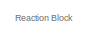
[diagram: root canvas - part 1/3, top left region]
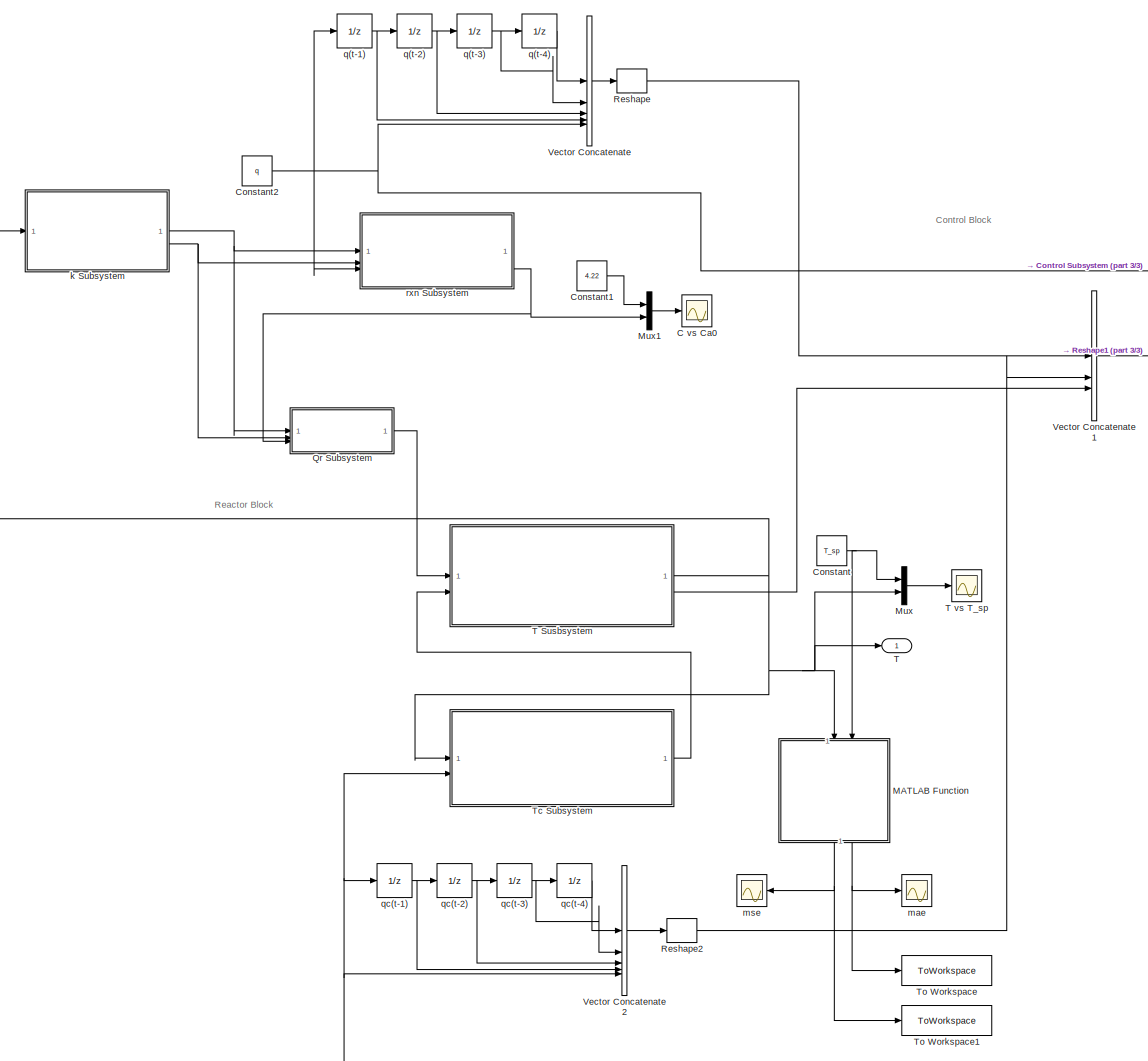
[diagram: root canvas - part 2/3, center side, full height]
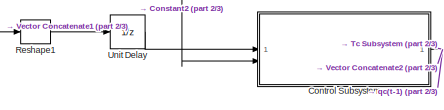
[diagram: root canvas - part 3/3, middle right region]
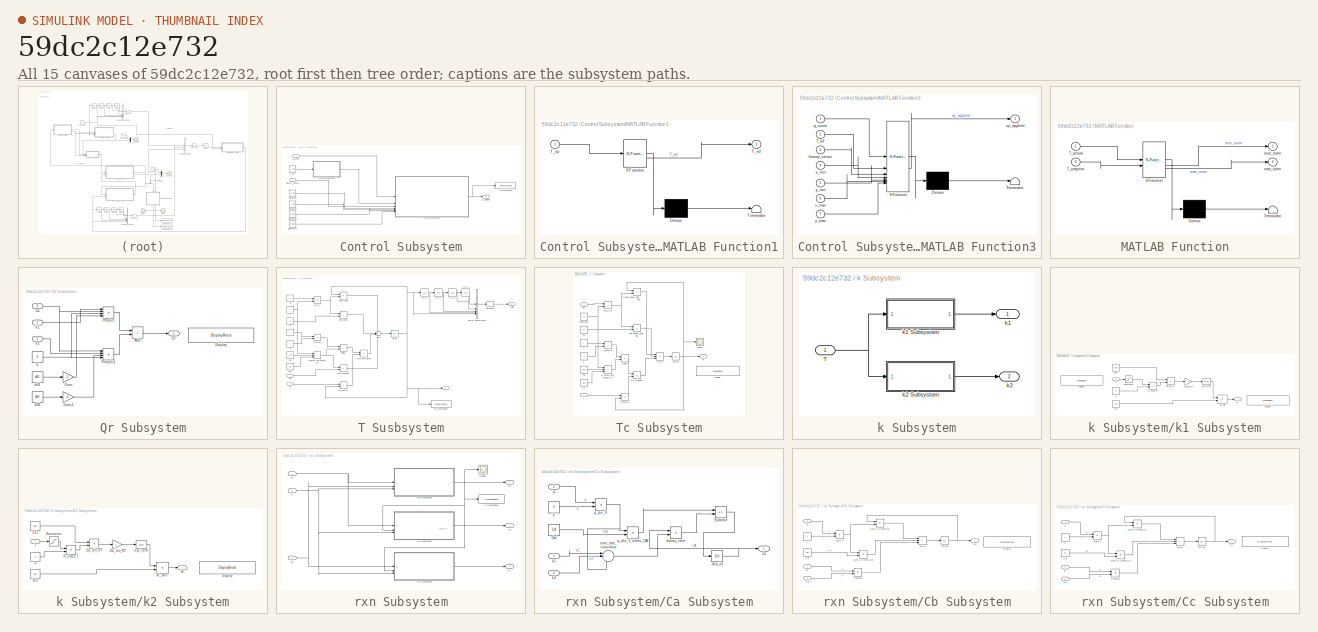
[diagram: thumbnail index - all 15 canvases of the model, root first then tree order]
MODEL slx_59dc2c12e732
KIND model
CONFIG AbsTol = auto
CONFIG EnableMultiTasking = off
CONFIG FixedStep = 0.001
CONFIG MaxStep = auto
CONFIG MinStep = auto
CONFIG RelTol = 1e-4
CONFIG SampleTimeConstraint = Unconstrained
CONFIG SolverName = ode4
CONFIG StartTime = 0.0
CONFIG StopTime = 300
BLOCK [Scope] C vs Ca0
  ActiveDisplayYMaximum = 4.2520566406797187
  ActiveDisplayYMinimum = 3.766402835808802
  DataLoggingVariableName = ScopeData2
  Floating = off
  GraphicalSettings = {"Style":{"BackgroundColor":[0.12941176470588237,0.12941176470588237,0.12941176470588237],"AxesColor":[0.07058823529411765,0.07058823529411765,0.07058823529411765],"LabelsColor":[0.8509803921568627,0.8509803921568627,0.8509803921568627],"PreserveColors":false,"Visible":[true,true],"LineStyle":["-","-"],"LineWidth":[1.5,1.5],"BarWidth":[0.9,0.9],"LineColor":["auto","auto"],"LineFaceAlpha":[1,1],"Li...<+2135ch>
  MultipleDisplayCache = [{"MaxYLimMag":4.2351851514195751,"MaxYLimReal":4.2520566406797187,"MinYLimMag":4.0833336372238227,"MinYLimReal":3.766402835808802,"PlotAsMagnitudePhase":false,"ShowGrid":true,"ShowLegend":false,"Title":"%<SignalLabel>","YLabel":""}]
  NumInputPorts = 1
  ScopeFrameLocation = window
  WasSavedAsWebScope = on
  WindowPosition = [817.000000,315.000000,672.000000,552.000000,]
BLOCK [Constant] Constant
  Value = T_sp
BLOCK [Constant] Constant1
  Value = 4.22
BLOCK [Constant] Constant2
  Value = q
BLOCK [SubSystem] Control Subsystem
BLOCK [Constant] Control Subsystem/Constant
  Value = x_min
BLOCK [Constant] Control Subsystem/Constant1
  Value = y_min
BLOCK [Constant] Control Subsystem/Constant2
  Value = x_max
BLOCK [Constant] Control Subsystem/Constant3
  Value = y_max
BLOCK [SubSystem] Control Subsystem/MATLAB Function1
  ErrorFcn = Stateflow.Translate.translate
  PermitHierarchicalResolution = ExplicitOnly
  SFBlockType = MATLAB Function
  TreatAsAtomicUnit = on
BLOCK [Demux] Control Subsystem/MATLAB Function1/ Demux 
  Outputs = 1
BLOCK [S-Function] Control Subsystem/MATLAB Function1/ SFunction 
  EnableBusSupport = off
  FunctionName = sf_sfun
  PortCounts = [1 2]
  SFcnIsStateOwnerBlock = off
  SFunctionDeploymentMode = off
  Tag = Stateflow S-Function 1
BLOCK [Terminator] Control Subsystem/MATLAB Function1/ Terminator 
BLOCK [Outport] Control Subsystem/MATLAB Function1/T_ref
BLOCK [Inport] Control Subsystem/MATLAB Function1/T_sp
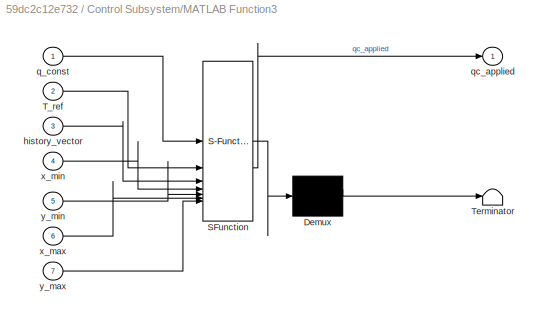
BLOCK [SubSystem] Control Subsystem/MATLAB Function3
  ErrorFcn = Stateflow.Translate.translate
  PermitHierarchicalResolution = ExplicitOnly
  SFBlockType = MATLAB Function
  TreatAsAtomicUnit = on
BLOCK [Demux] Control Subsystem/MATLAB Function3/ Demux 
  Outputs = 1
BLOCK [S-Function] Control Subsystem/MATLAB Function3/ SFunction 
  EnableBusSupport = off
  FunctionName = sf_sfun
  PortCounts = [7 2]
  SFcnIsStateOwnerBlock = off
  SFunctionDeploymentMode = off
  Tag = Stateflow S-Function 4
BLOCK [Terminator] Control Subsystem/MATLAB Function3/ Terminator 
BLOCK [Inport] Control Subsystem/MATLAB Function3/T_ref
  Port = 2
BLOCK [Inport] Control Subsystem/MATLAB Function3/history_vector
  Port = 3
BLOCK [Inport] Control Subsystem/MATLAB Function3/q_const
BLOCK [Outport] Control Subsystem/MATLAB Function3/qc_applied
BLOCK [Inport] Control Subsystem/MATLAB Function3/x_max
  Port = 6
BLOCK [Inport] Control Subsystem/MATLAB Function3/x_min
  Port = 4
BLOCK [Inport] Control Subsystem/MATLAB Function3/y_max
  Port = 7
BLOCK [Inport] Control Subsystem/MATLAB Function3/y_min
  Port = 5
BLOCK [Constant] Control Subsystem/T_sp
  Value = T_sp
BLOCK [ToWorkspace] Control Subsystem/To Workspace
  MaxDataPoints = inf
  SampleTime = -1
  Save2DSignal = 2-D array (concatenate along first dimension)
  VariableName = simout
BLOCK [Inport] Control Subsystem/history_vector
BLOCK [Inport] Control Subsystem/q_const
  Port = 2
BLOCK [Outport] Control Subsystem/qc_applied
BLOCK [SubSystem] MATLAB Function
  ErrorFcn = Stateflow.Translate.translate
  NameLocation = left
  PermitHierarchicalResolution = ExplicitOnly
  SFBlockType = MATLAB Function
  TreatAsAtomicUnit = on
BLOCK [Demux] MATLAB Function/ Demux 
  Outputs = 1
BLOCK [S-Function] MATLAB Function/ SFunction 
  EnableBusSupport = off
  FunctionName = sf_sfun
  PortCounts = [2 3]
  SFcnIsStateOwnerBlock = off
  SFunctionDeploymentMode = off
  Tag = Stateflow S-Function 2
BLOCK [Terminator] MATLAB Function/ Terminator 
BLOCK [Inport] MATLAB Function/T_actual
BLOCK [Inport] MATLAB Function/T_setpoint
  Port = 2
BLOCK [Outport] MATLAB Function/mae_norm
  Port = 2
BLOCK [Outport] MATLAB Function/mse_norm
BLOCK [Mux] Mux
  DisplayOption = bar
  Inputs = 2
BLOCK [Mux] Mux1
  DisplayOption = bar
  Inputs = 2
BLOCK [SubSystem] Qr Subsystem
BLOCK [Sum] Qr Subsystem/Add
  IconShape = rectangular
BLOCK [Inport] Qr Subsystem/Ca
  Port = 3
BLOCK [DisplayBlock] Qr Subsystem/Display
  GridColor = [0.502, 0.502, 0.502]
  LabelPosition = Hide
  Transparency = 1
BLOCK [Gain] Qr Subsystem/Gain
  Gain = -1
BLOCK [Gain] Qr Subsystem/Gain1
  Gain = -1
BLOCK [Product] Qr Subsystem/Product
  Inputs = 4
BLOCK [Product] Qr Subsystem/Product1
  Inputs = 4
BLOCK [Outport] Qr Subsystem/Qr
BLOCK [Constant] Qr Subsystem/V
  Value = V
BLOCK [Constant] Qr Subsystem/dH1
  Value = dH1
BLOCK [Constant] Qr Subsystem/dH2
  Value = dH2
BLOCK [Inport] Qr Subsystem/k1
BLOCK [Inport] Qr Subsystem/k2
  Port = 2
BLOCK [Reshape] Reshape
  OutputDimensionality = Customize
  OutputDimensions = [1,5]
BLOCK [Reshape] Reshape1
  OutputDimensionality = Customize
  OutputDimensions = [1,15]
BLOCK [Reshape] Reshape2
  OutputDimensionality = Customize
  OutputDimensions = [1,5]
BLOCK [Outport] T
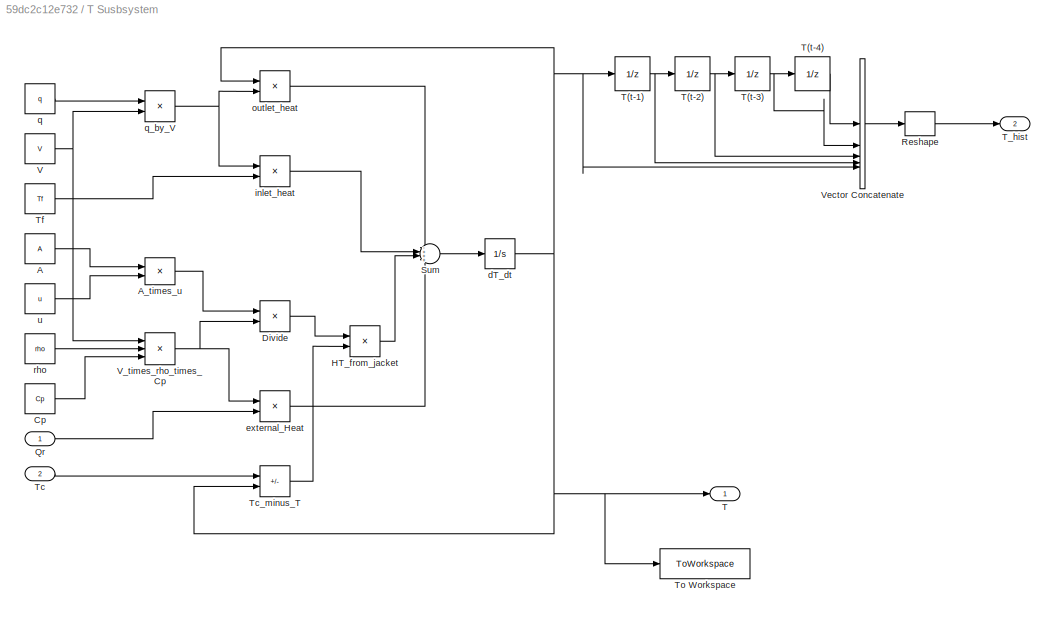
BLOCK [SubSystem] T Susbsystem
BLOCK [Constant] T Susbsystem/A
  Value = A
BLOCK [Product] T Susbsystem/A_times_u
BLOCK [Constant] T Susbsystem/Cp
  Value = Cp
BLOCK [Product] T Susbsystem/Divide
  Inputs = */
BLOCK [Product] T Susbsystem/HT_from_jacket
BLOCK [Inport] T Susbsystem/Qr
BLOCK [Reshape] T Susbsystem/Reshape
  OutputDimensionality = Customize
  OutputDimensions = [1,5]
BLOCK [Sum] T Susbsystem/Sum
  Inputs = -+++
BLOCK [Outport] T Susbsystem/T
BLOCK [UnitDelay] T Susbsystem/T(t-1)
  HasFrameUpgradeWarning = on
  InitialCondition = 310
  SampleTime = 0.001
BLOCK [UnitDelay] T Susbsystem/T(t-2)
  HasFrameUpgradeWarning = on
  InitialCondition = 310
  SampleTime = 0.001
BLOCK [UnitDelay] T Susbsystem/T(t-3)
  HasFrameUpgradeWarning = on
  InitialCondition = 310
  SampleTime = 0.001
BLOCK [UnitDelay] T Susbsystem/T(t-4)
  HasFrameUpgradeWarning = on
  InitialCondition = 310
  SampleTime = 0.001
BLOCK [Outport] T Susbsystem/T_hist
  Port = 2
BLOCK [Inport] T Susbsystem/Tc
  Port = 2
BLOCK [Sum] T Susbsystem/Tc_minus_T
  IconShape = rectangular
  Inputs = +-
BLOCK [Constant] T Susbsystem/Tf
  Value = Tf
BLOCK [ToWorkspace] T Susbsystem/To Workspace
  MaxDataPoints = inf
  SampleTime = -1
  Save2DSignal = 2-D array (concatenate along first dimension)
  VariableName = T
BLOCK [Constant] T Susbsystem/V
  Value = V
BLOCK [Product] T Susbsystem/V_times_rho_times_Cp
  Inputs = 3
BLOCK [Concatenate] T Susbsystem/Vector Concatenate
  NumInputs = 5
BLOCK [Integrator] T Susbsystem/dT_dt
  InitialCondition = T0
BLOCK [Product] T Susbsystem/external_Heat
  Inputs = /*
BLOCK [Product] T Susbsystem/inlet_heat
BLOCK [Product] T Susbsystem/outlet_heat
BLOCK [Constant] T Susbsystem/q
  Value = q
BLOCK [Product] T Susbsystem/q_by_V
  Inputs = */
BLOCK [Constant] T Susbsystem/rho
  Value = rho
BLOCK [Constant] T Susbsystem/u
  Value = u
BLOCK [Scope] T vs T_sp
  ActiveDisplayYMaximum = 319.062832838866
  ActiveDisplayYMinimum = 307.26252980185956
  Floating = off
  GraphicalSettings = {"AxesScalingProperties":{"AlignXAxis":"Center","AlignYAxis":"Center","AutoScaleXAxisLimits":false,"AxesScaling":"Manual","AxesScalingNumUpdates":10,"ExpandOnly":true,"ScaleAxesLimitsAtStop":false,"XAxisDataRange":100,"YAxisDataRange":80},"DisplayProperties":{"ColorOrder":["auto","auto","auto","auto","auto","auto","auto","auto","auto","auto","auto","auto","auto","auto","auto","auto","auto","auto",...<+2148ch>
  MultipleDisplayCache = [{"MaxYLimMag":321.31930865769408,"MaxYLimReal":319.062832838866,"MinYLimMag":308.12622208075328,"MinYLimReal":307.26252980185956,"PlotAsMagnitudePhase":false,"ShowGrid":true,"ShowLegend":false,"Title":"%<SignalLabel>","YLabel":""}]
  NumInputPorts = 1
  ScopeFrameLocation = window
  WasSavedAsWebScope = on
  WindowPosition = [483.000000,375.000000,671.000000,588.000000,]
BLOCK [SubSystem] Tc Subsystem
BLOCK [Constant] Tc Subsystem/A
  Value = A
BLOCK [Product] Tc Subsystem/A_times_u
BLOCK [Constant] Tc Subsystem/Constant1
  Value = Vc
BLOCK [Constant] Tc Subsystem/Cp
  Value = Cpc
BLOCK [DisplayBlock] Tc Subsystem/Display
  GridColor = [0.502, 0.502, 0.502]
  LabelPosition = Hide
  Transparency = 1
BLOCK [Product] Tc Subsystem/Divide
  Inputs = */
BLOCK [Product] Tc Subsystem/HT_to_jacket
BLOCK [Product] Tc Subsystem/Outlet_jacket_fluid_flow
BLOCK [Sum] Tc Subsystem/RHS
  IconShape = rectangular
  Inputs = -++
BLOCK [Scope] Tc Subsystem/Scope
  ActiveDisplayYMaximum = 300.98794
  ActiveDisplayYMinimum = 291.10857
  DataLoggingVariableName = ScopeData3
  Floating = off
  GraphicalSettings = {"Style":{"BackgroundColor":[0.12941176470588237,0.12941176470588237,0.12941176470588237],"AxesColor":[0.07058823529411765,0.07058823529411765,0.07058823529411765],"LabelsColor":[0.8509803921568627,0.8509803921568627,0.8509803921568627],"PreserveColors":false,"Visible":[true,true,true,true,true,true,true],"LineStyle":["-","-","-","-","-","-","-"],"LineWidth":[1.5,1.5,1.5,1.5,1.5,1.5,1.5],"BarWidth...<+2538ch>
  MultipleDisplayCache = [{"MaxYLimMag":300.98794,"MaxYLimReal":300.98794,"MinYLimMag":291.10857,"MinYLimReal":291.10857,"PlotAsMagnitudePhase":false,"ShowGrid":true,"ShowLegend":false,"Title":"%<SignalLabel>","YLabel":""}]
  NumInputPorts = 1
  ScopeFrameLocation = window
  WasSavedAsWebScope = on
  WindowPosition = [388.000000,226.000000,560.000000,420.000000,]
BLOCK [Inport] Tc Subsystem/T
BLOCK [Sum] Tc Subsystem/T_minus_Tc
  IconShape = rectangular
  Inputs = +-
BLOCK [Outport] Tc Subsystem/Tc
BLOCK [Constant] Tc Subsystem/Tcf
  Value = Tcf
BLOCK [Product] Tc Subsystem/Vc_times_rhoc_times_Cp
  Inputs = 3
BLOCK [Integrator] Tc Subsystem/dTc_dt
  InitialCondition = Tc0
BLOCK [Product] Tc Subsystem/inlet_jacket_fluid_flow
BLOCK [Inport] Tc Subsystem/qc
  Port = 2
BLOCK [Product] Tc Subsystem/qc_by_Vc
  Inputs = */
BLOCK [Constant] Tc Subsystem/rho
  Value = rhoc
BLOCK [Constant] Tc Subsystem/u
  Value = u
BLOCK [ToWorkspace] To Workspace
  MaxDataPoints = inf
  SampleTime = -1
  Save2DSignal = 2-D array (concatenate along first dimension)
  VariableName = mae
BLOCK [ToWorkspace] To Workspace1
  MaxDataPoints = inf
  SampleTime = -1
  Save2DSignal = 2-D array (concatenate along first dimension)
  VariableName = mse
BLOCK [UnitDelay] Unit Delay
  HasFrameUpgradeWarning = on
  SampleTime = 0.001
BLOCK [Concatenate] Vector Concatenate
  NumInputs = 5
BLOCK [Concatenate] Vector Concatenate1
  NumInputs = 3
BLOCK [Concatenate] Vector Concatenate2
  NumInputs = 5
BLOCK [SubSystem] k Subsystem
BLOCK [Inport] k Subsystem/T
BLOCK [Outport] k Subsystem/k1
BLOCK [SubSystem] k Subsystem/k1 Subsystem
BLOCK [Gain] k Subsystem/k1 Subsystem/-Ea_div_RT
  Gain = -1
BLOCK [DisplayBlock] k Subsystem/k1 Subsystem/Display
  GridColor = [0.502, 0.502, 0.502]
  LabelPosition = Hide
  Transparency = 1
BLOCK [DisplayBlock] k Subsystem/k1 Subsystem/Display1
  GridColor = [0.502, 0.502, 0.502]
  LabelPosition = Hide
  Transparency = 1
BLOCK [Constant] k Subsystem/k1 Subsystem/Ea1
  Value = Ea1
BLOCK [Product] k Subsystem/k1 Subsystem/Ea_div_RT
  Inputs = */
BLOCK [Constant] k Subsystem/k1 Subsystem/R
  Value = R
BLOCK [Product] k Subsystem/k1 Subsystem/R_times_T
BLOCK [Saturate] k Subsystem/k1 Subsystem/Saturation
  LowerLimit = 0.001
  UpperLimit = Inf
BLOCK [Inport] k Subsystem/k1 Subsystem/T
BLOCK [Math] k Subsystem/k1 Subsystem/exp_term
BLOCK [Outport] k Subsystem/k1 Subsystem/k1
BLOCK [Constant] k Subsystem/k1 Subsystem/k10
  Value = k10
BLOCK [Product] k Subsystem/k1 Subsystem/k1_calc
BLOCK [Outport] k Subsystem/k2
  Port = 2
BLOCK [SubSystem] k Subsystem/k2 Subsystem
BLOCK [Gain] k Subsystem/k2 Subsystem/-Ea_div_RT
  Gain = -1
BLOCK [DisplayBlock] k Subsystem/k2 Subsystem/Display
  GridColor = [0.502, 0.502, 0.502]
  LabelPosition = Hide
  Transparency = 1
BLOCK [Constant] k Subsystem/k2 Subsystem/Ea2
  Value = Ea2
BLOCK [Product] k Subsystem/k2 Subsystem/Ea_div_RT
  Inputs = */
BLOCK [Constant] k Subsystem/k2 Subsystem/R
  Value = R
BLOCK [Product] k Subsystem/k2 Subsystem/R_times_T
BLOCK [Saturate] k Subsystem/k2 Subsystem/Saturation
  LowerLimit = 0.001
  UpperLimit = Inf
BLOCK [Inport] k Subsystem/k2 Subsystem/T
BLOCK [Math] k Subsystem/k2 Subsystem/exp_term
BLOCK [Outport] k Subsystem/k2 Subsystem/k2
BLOCK [Constant] k Subsystem/k2 Subsystem/k20
  Value = k20
BLOCK [Product] k Subsystem/k2 Subsystem/k2_calc
BLOCK [Scope] mae
  ActiveDisplayYMaximum = 0.1401258008077923
  ActiveDisplayYMinimum = -0.092816659367144075
  DataLoggingVariableName = ScopeData4
  Floating = off
  GraphicalSettings = {"AxesScalingProperties":{"AlignXAxis":"Center","AlignYAxis":"Center","AutoScaleXAxisLimits":false,"AxesScaling":"Manual","AxesScalingNumUpdates":10,"ExpandOnly":true,"ScaleAxesLimitsAtStop":false,"XAxisDataRange":100,"YAxisDataRange":80},"DisplayProperties":{"ColorOrder":["auto","auto","auto","auto","auto","auto","auto","auto","auto","auto","auto","auto","auto","auto","auto","auto","auto","auto",...<+2015ch>
  MultipleDisplayCache = [{"MaxYLimMag":11.149995894093049,"MaxYLimReal":0.1401258008077923,"MinYLimMag":0,"MinYLimReal":-0.092816659367144075,"PlotAsMagnitudePhase":false,"ShowGrid":true,"ShowLegend":false,"Title":"%<SignalLabel>","YLabel":""}]
  NumInputPorts = 1
  ScopeFrameLocation = window
  WasSavedAsWebScope = on
  WindowPosition = [585.000000,345.000000,560.000000,420.000000,]
BLOCK [Scope] mse
  ActiveDisplayYMaximum = 193.57829907798396
  ActiveDisplayYMinimum = -76.729085531410988
  DataLoggingVariableName = ScopeData5
  Floating = off
  GraphicalSettings = {"Style":{"BackgroundColor":[0.12941176470588237,0.12941176470588237,0.12941176470588237],"AxesColor":[0.07058823529411765,0.07058823529411765,0.07058823529411765],"LabelsColor":[0.8509803921568627,0.8509803921568627,0.8509803921568627],"PreserveColors":false,"Visible":[true],"LineStyle":["-"],"LineWidth":[1.5],"BarWidth":[0.9],"LineColor":["auto"],"LineFaceAlpha":[1],"LineEdgeAlpha":[1],"Marker":...<+2007ch>
  MultipleDisplayCache = [{"MaxYLimMag":112.11491018718662,"MaxYLimReal":193.57829907798396,"MinYLimMag":0,"MinYLimReal":-76.729085531410988,"PlotAsMagnitudePhase":false,"ShowGrid":true,"ShowLegend":false,"Title":"%<SignalLabel>","YLabel":""}]
  NumInputPorts = 1
  ScopeFrameLocation = window
  WasSavedAsWebScope = on
  WindowPosition = [680.000000,330.000000,560.000000,420.000000,]
BLOCK [UnitDelay] q(t-1)
  HasFrameUpgradeWarning = on
  InitialCondition = 0.01
  SampleTime = 0.001
BLOCK [UnitDelay] q(t-2)
  HasFrameUpgradeWarning = on
  InitialCondition = 0.01
  SampleTime = 0.001
BLOCK [UnitDelay] q(t-3)
  HasFrameUpgradeWarning = on
  InitialCondition = 0.01
  SampleTime = 0.001
BLOCK [UnitDelay] q(t-4)
  HasFrameUpgradeWarning = on
  InitialCondition = 0.01
  SampleTime = 0.001
BLOCK [UnitDelay] qc(t-1)
  HasFrameUpgradeWarning = on
  InitialCondition = 0.01
  SampleTime = 0.001
BLOCK [UnitDelay] qc(t-2)
  HasFrameUpgradeWarning = on
  InitialCondition = 0.01
  SampleTime = 0.001
BLOCK [UnitDelay] qc(t-3)
  HasFrameUpgradeWarning = on
  InitialCondition = 0.01
  SampleTime = 0.001
BLOCK [UnitDelay] qc(t-4)
  HasFrameUpgradeWarning = on
  InitialCondition = 0.01
  SampleTime = 0.001
BLOCK [SubSystem] rxn Subsystem
BLOCK [Outport] rxn Subsystem/Ca
  Port = 3
BLOCK [SubSystem] rxn Subsystem/Ca Subsystem
BLOCK [Outport] rxn Subsystem/Ca Subsystem/Ca
BLOCK [Constant] rxn Subsystem/Ca Subsystem/Caf
  Value = Caf
BLOCK [Sum] rxn Subsystem/Ca Subsystem/Subtract
  IconShape = rectangular
  Inputs = +-
BLOCK [Constant] rxn Subsystem/Ca Subsystem/V
  SampleTime = Inf
  Value = V
BLOCK [Integrator] rxn Subsystem/Ca Subsystem/dCa_dt
  InitialCondition = 4.22
BLOCK [Product] rxn Subsystem/Ca Subsystem/decay_term
BLOCK [Inport] rxn Subsystem/Ca Subsystem/k1
BLOCK [Inport] rxn Subsystem/Ca Subsystem/k2
  Port = 2
BLOCK [Inport] rxn Subsystem/Ca Subsystem/q
  Port = 3
BLOCK [Product] rxn Subsystem/Ca Subsystem/q_div_V
  Inputs = */
BLOCK [Product] rxn Subsystem/Ca Subsystem/q_div_V_times_CAf
BLOCK [Sum] rxn Subsystem/Ca Subsystem/sum_rate_constants
  Inputs = |+++
BLOCK [Outport] rxn Subsystem/Cb
BLOCK [SubSystem] rxn Subsystem/Cb Subsystem
BLOCK [Inport] rxn Subsystem/Cb Subsystem/Ca
  Port = 2
BLOCK [Outport] rxn Subsystem/Cb Subsystem/Cb
BLOCK [Constant] rxn Subsystem/Cb Subsystem/Cbf
  Value = Cbf
BLOCK [DisplayBlock] rxn Subsystem/Cb Subsystem/Display
  GridColor = [0.502, 0.502, 0.502]
  LabelPosition = Hide
  Transparency = 1
BLOCK [Product] rxn Subsystem/Cb Subsystem/Product2
BLOCK [Sum] rxn Subsystem/Cb Subsystem/RHS
  IconShape = rectangular
  Inputs = -++
BLOCK [Constant] rxn Subsystem/Cb Subsystem/V
  Value = V
BLOCK [Integrator] rxn Subsystem/Cb Subsystem/dCb_dt
BLOCK [Inport] rxn Subsystem/Cb Subsystem/k1
BLOCK [Inport] rxn Subsystem/Cb Subsystem/q
  Port = 3
BLOCK [Product] rxn Subsystem/Cb Subsystem/q_div_V
  Inputs = */
BLOCK [Product] rxn Subsystem/Cb Subsystem/q_div_V_times_Cb
BLOCK [Product] rxn Subsystem/Cb Subsystem/q_div_V_times_Cbf
BLOCK [Outport] rxn Subsystem/Cc
  Port = 2
BLOCK [SubSystem] rxn Subsystem/Cc Subsystem
BLOCK [Inport] rxn Subsystem/Cc Subsystem/Ca
  Port = 2
BLOCK [Outport] rxn Subsystem/Cc Subsystem/Cc
BLOCK [Constant] rxn Subsystem/Cc Subsystem/Ccf
  Value = Ccf
BLOCK [DisplayBlock] rxn Subsystem/Cc Subsystem/Display
  GridColor = [0.502, 0.502, 0.502]
  LabelPosition = Hide
  Transparency = 1
BLOCK [Product] rxn Subsystem/Cc Subsystem/Product2
BLOCK [Sum] rxn Subsystem/Cc Subsystem/RHS
  IconShape = rectangular
  Inputs = -++
BLOCK [Constant] rxn Subsystem/Cc Subsystem/V
  Value = V
BLOCK [Integrator] rxn Subsystem/Cc Subsystem/dCc_dt
BLOCK [Inport] rxn Subsystem/Cc Subsystem/k2
BLOCK [Inport] rxn Subsystem/Cc Subsystem/q
  Port = 3
BLOCK [Product] rxn Subsystem/Cc Subsystem/q_div_V
  Inputs = */
BLOCK [Product] rxn Subsystem/Cc Subsystem/q_div_V_times_Cc
BLOCK [Product] rxn Subsystem/Cc Subsystem/q_div_V_times_Ccf
BLOCK [Scope] rxn Subsystem/Scope
  ActiveDisplayYMaximum = 4.259712587302511
  ActiveDisplayYMinimum = 3.8625867142774011
  DataLoggingVariableName = ScopeData1
  Floating = off
  GraphicalSettings = {"Style":{"BackgroundColor":[0.12941176470588237,0.12941176470588237,0.12941176470588237],"AxesColor":[0.07058823529411765,0.07058823529411765,0.07058823529411765],"LabelsColor":[0.8509803921568627,0.8509803921568627,0.8509803921568627],"PreserveColors":false,"Visible":[true],"LineStyle":["-"],"LineWidth":[1.5],"BarWidth":[0.9],"LineColor":["auto"],"LineFaceAlpha":[1],"LineEdgeAlpha":[1],"Marker":...<+2022ch>
  MultipleDisplayCache = [{"MaxYLimMag":4.259712587302511,"MaxYLimReal":4.259712587302511,"MinYLimMag":3.8625867142774011,"MinYLimReal":3.8625867142774011,"PlotAsMagnitudePhase":false,"ShowGrid":true,"ShowLegend":false,"Title":"%<SignalLabel>","YLabel":""}]
  NumInputPorts = 1
  ScopeFrameLocation = window
  WasSavedAsWebScope = on
  WindowPosition = [680.000000,330.000000,560.000000,420.000000,]
BLOCK [ToWorkspace] rxn Subsystem/To Workspace
  MaxDataPoints = inf
  SampleTime = -1
  Save2DSignal = 2-D array (concatenate along first dimension)
  VariableName = Ca
BLOCK [Inport] rxn Subsystem/k1
BLOCK [Inport] rxn Subsystem/k2
  Port = 2
BLOCK [Inport] rxn Subsystem/q
  Port = 3
ANNOTATION (root): Control Block
ANNOTATION (root): Reaction Block
ANNOTATION (root): Reactor Block
ANNOTATION rxn Subsystem: q_div_V
LINE Constant1:1 -> Mux1:1
NET Constant2:1 -> Control Subsystem:2, Vector Concatenate:5, q(t-1):1, rxn Subsystem:3
NET Constant:1 -> MATLAB Function:2, Mux:1
LINE Control Subsystem/Constant1:1 -> Control Subsystem/MATLAB Function3:5
LINE Control Subsystem/Constant2:1 -> Control Subsystem/MATLAB Function3:6
LINE Control Subsystem/Constant3:1 -> Control Subsystem/MATLAB Function3:7
LINE Control Subsystem/Constant:1 -> Control Subsystem/MATLAB Function3:4
LINE Control Subsystem/MATLAB Function1:1 -> Control Subsystem/MATLAB Function3:2
NET Control Subsystem/MATLAB Function3:1 -> Control Subsystem/To Workspace:1, Control Subsystem/qc_applied:1
LINE Control Subsystem/T_sp:1 -> Control Subsystem/MATLAB Function1:1
LINE Control Subsystem/history_vector:1 -> Control Subsystem/MATLAB Function3:3
LINE Control Subsystem/q_const:1 -> Control Subsystem/MATLAB Function3:1
NET Control Subsystem:1 -> Tc Subsystem:2, Vector Concatenate2:5, qc(t-1):1
NET MATLAB Function:1 -> To Workspace1:1, mse:1
NET MATLAB Function:2 -> To Workspace:1, mae:1
LINE Mux1:1 -> C vs Ca0:1
LINE Mux:1 -> T vs T_sp:1
LINE Qr Subsystem/Add:1 -> Qr Subsystem/Qr:1
NET Qr Subsystem/Ca:1 -> Qr Subsystem/Product1:1, Qr Subsystem/Product:2
LINE Qr Subsystem/Gain1:1 -> Qr Subsystem/Product1:3
LINE Qr Subsystem/Gain:1 -> Qr Subsystem/Product:4
LINE Qr Subsystem/Product1:1 -> Qr Subsystem/Add:2
LINE Qr Subsystem/Product:1 -> Qr Subsystem/Add:1
NET Qr Subsystem/V:1 -> Qr Subsystem/Product1:4, Qr Subsystem/Product:3
LINE Qr Subsystem/dH1:1 -> Qr Subsystem/Gain:1
LINE Qr Subsystem/dH2:1 -> Qr Subsystem/Gain1:1
LINE Qr Subsystem/k1:1 -> Qr Subsystem/Product:1
LINE Qr Subsystem/k2:1 -> Qr Subsystem/Product1:2
LINE Qr Subsystem:1 -> T Susbsystem:1
LINE Reshape1:1 -> Unit Delay:1
LINE Reshape2:1 -> Vector Concatenate1:2
LINE Reshape:1 -> Vector Concatenate1:1
LINE T Susbsystem/A:1 -> T Susbsystem/A_times_u:1
LINE T Susbsystem/A_times_u:1 -> T Susbsystem/Divide:1
LINE T Susbsystem/Cp:1 -> T Susbsystem/V_times_rho_times_Cp:3
LINE T Susbsystem/Divide:1 -> T Susbsystem/HT_from_jacket:1
LINE T Susbsystem/HT_from_jacket:1 -> T Susbsystem/Sum:3
LINE T Susbsystem/Qr:1 -> T Susbsystem/external_Heat:2
LINE T Susbsystem/Reshape:1 -> T Susbsystem/T_hist:1
LINE T Susbsystem/Sum:1 -> T Susbsystem/dT_dt:1
NET T Susbsystem/T(t-1):1 -> T Susbsystem/T(t-2):1, T Susbsystem/Vector Concatenate:4
NET T Susbsystem/T(t-2):1 -> T Susbsystem/T(t-3):1, T Susbsystem/Vector Concatenate:3
NET T Susbsystem/T(t-3):1 -> T Susbsystem/T(t-4):1, T Susbsystem/Vector Concatenate:2
LINE T Susbsystem/T(t-4):1 -> T Susbsystem/Vector Concatenate:1
LINE T Susbsystem/Tc:1 -> T Susbsystem/Tc_minus_T:1
LINE T Susbsystem/Tc_minus_T:1 -> T Susbsystem/HT_from_jacket:2
LINE T Susbsystem/Tf:1 -> T Susbsystem/inlet_heat:2
NET T Susbsystem/V:1 -> T Susbsystem/V_times_rho_times_Cp:1, T Susbsystem/q_by_V:2
NET T Susbsystem/V_times_rho_times_Cp:1 -> T Susbsystem/Divide:2, T Susbsystem/external_Heat:1
LINE T Susbsystem/Vector Concatenate:1 -> T Susbsystem/Reshape:1
NET T Susbsystem/dT_dt:1 -> T Susbsystem/T(t-1):1, T Susbsystem/T:1, T Susbsystem/Tc_minus_T:2, T Susbsystem/To Workspace:1, T Susbsystem/Vector Concatenate:5, T Susbsystem/outlet_heat:1
LINE T Susbsystem/external_Heat:1 -> T Susbsystem/Sum:4
LINE T Susbsystem/inlet_heat:1 -> T Susbsystem/Sum:2
LINE T Susbsystem/outlet_heat:1 -> T Susbsystem/Sum:1
LINE T Susbsystem/q:1 -> T Susbsystem/q_by_V:1
NET T Susbsystem/q_by_V:1 -> T Susbsystem/inlet_heat:1, T Susbsystem/outlet_heat:2
LINE T Susbsystem/rho:1 -> T Susbsystem/V_times_rho_times_Cp:2
LINE T Susbsystem/u:1 -> T Susbsystem/A_times_u:2
NET T Susbsystem:1 -> MATLAB Function:1, Mux:2, T:1, Tc Subsystem:1, k Subsystem:1
LINE T Susbsystem:2 -> Vector Concatenate1:3
LINE Tc Subsystem/A:1 -> Tc Subsystem/A_times_u:1
LINE Tc Subsystem/A_times_u:1 -> Tc Subsystem/Divide:1
NET Tc Subsystem/Constant1:1 -> Tc Subsystem/Vc_times_rhoc_times_Cp:1, Tc Subsystem/qc_by_Vc:2
LINE Tc Subsystem/Cp:1 -> Tc Subsystem/Vc_times_rhoc_times_Cp:3
LINE Tc Subsystem/Divide:1 -> Tc Subsystem/HT_to_jacket:1
LINE Tc Subsystem/HT_to_jacket:1 -> Tc Subsystem/RHS:3
LINE Tc Subsystem/Outlet_jacket_fluid_flow:1 -> Tc Subsystem/RHS:1
LINE Tc Subsystem/RHS:1 -> Tc Subsystem/dTc_dt:1
LINE Tc Subsystem/T:1 -> Tc Subsystem/T_minus_Tc:1
LINE Tc Subsystem/T_minus_Tc:1 -> Tc Subsystem/HT_to_jacket:2
LINE Tc Subsystem/Tcf:1 -> Tc Subsystem/inlet_jacket_fluid_flow:2
LINE Tc Subsystem/Vc_times_rhoc_times_Cp:1 -> Tc Subsystem/Divide:2
NET Tc Subsystem/dTc_dt:1 -> Tc Subsystem/Outlet_jacket_fluid_flow:1, Tc Subsystem/Scope:1, Tc Subsystem/T_minus_Tc:2, Tc Subsystem/Tc:1
LINE Tc Subsystem/inlet_jacket_fluid_flow:1 -> Tc Subsystem/RHS:2
LINE Tc Subsystem/qc:1 -> Tc Subsystem/qc_by_Vc:1
NET Tc Subsystem/qc_by_Vc:1 -> Tc Subsystem/Outlet_jacket_fluid_flow:2, Tc Subsystem/inlet_jacket_fluid_flow:1
LINE Tc Subsystem/rho:1 -> Tc Subsystem/Vc_times_rhoc_times_Cp:2
LINE Tc Subsystem/u:1 -> Tc Subsystem/A_times_u:2
LINE Tc Subsystem:1 -> T Susbsystem:2
LINE Unit Delay:1 -> Control Subsystem:1
LINE Vector Concatenate1:1 -> Reshape1:1
LINE Vector Concatenate2:1 -> Reshape2:1
LINE Vector Concatenate:1 -> Reshape:1
NET k Subsystem/T:1 -> k Subsystem/k1 Subsystem:1, k Subsystem/k2 Subsystem:1
LINE k Subsystem/k1 Subsystem/-Ea_div_RT:1 -> k Subsystem/k1 Subsystem/exp_term:1
LINE k Subsystem/k1 Subsystem/Ea1:1 -> k Subsystem/k1 Subsystem/Ea_div_RT:1
LINE k Subsystem/k1 Subsystem/Ea_div_RT:1 -> k Subsystem/k1 Subsystem/-Ea_div_RT:1
LINE k Subsystem/k1 Subsystem/R:1 -> k Subsystem/k1 Subsystem/R_times_T:2
LINE k Subsystem/k1 Subsystem/R_times_T:1 -> k Subsystem/k1 Subsystem/Ea_div_RT:2
LINE k Subsystem/k1 Subsystem/Saturation:1 -> k Subsystem/k1 Subsystem/R_times_T:1
LINE k Subsystem/k1 Subsystem/T:1 -> k Subsystem/k1 Subsystem/Saturation:1
LINE k Subsystem/k1 Subsystem/exp_term:1 -> k Subsystem/k1 Subsystem/k1_calc:1
LINE k Subsystem/k1 Subsystem/k10:1 -> k Subsystem/k1 Subsystem/k1_calc:2
LINE k Subsystem/k1 Subsystem/k1_calc:1 -> k Subsystem/k1 Subsystem/k1:1
LINE k Subsystem/k1 Subsystem:1 -> k Subsystem/k1:1
LINE k Subsystem/k2 Subsystem/-Ea_div_RT:1 -> k Subsystem/k2 Subsystem/exp_term:1
LINE k Subsystem/k2 Subsystem/Ea2:1 -> k Subsystem/k2 Subsystem/Ea_div_RT:1
LINE k Subsystem/k2 Subsystem/Ea_div_RT:1 -> k Subsystem/k2 Subsystem/-Ea_div_RT:1
LINE k Subsystem/k2 Subsystem/R:1 -> k Subsystem/k2 Subsystem/R_times_T:2
LINE k Subsystem/k2 Subsystem/R_times_T:1 -> k Subsystem/k2 Subsystem/Ea_div_RT:2
LINE k Subsystem/k2 Subsystem/Saturation:1 -> k Subsystem/k2 Subsystem/R_times_T:1
LINE k Subsystem/k2 Subsystem/T:1 -> k Subsystem/k2 Subsystem/Saturation:1
LINE k Subsystem/k2 Subsystem/exp_term:1 -> k Subsystem/k2 Subsystem/k2_calc:1
LINE k Subsystem/k2 Subsystem/k20:1 -> k Subsystem/k2 Subsystem/k2_calc:2
LINE k Subsystem/k2 Subsystem/k2_calc:1 -> k Subsystem/k2 Subsystem/k2:1
LINE k Subsystem/k2 Subsystem:1 -> k Subsystem/k2:1
NET k Subsystem:1 -> Qr Subsystem:1, rxn Subsystem:1
NET k Subsystem:2 -> Qr Subsystem:2, rxn Subsystem:2
NET q(t-1):1 -> Vector Concatenate:4, q(t-2):1
NET q(t-2):1 -> Vector Concatenate:3, q(t-3):1
NET q(t-3):1 -> Vector Concatenate:2, q(t-4):1
LINE q(t-4):1 -> Vector Concatenate:1
NET qc(t-1):1 -> Vector Concatenate2:4, qc(t-2):1
NET qc(t-2):1 -> Vector Concatenate2:3, qc(t-3):1
NET qc(t-3):1 -> Vector Concatenate2:2, qc(t-4):1
LINE qc(t-4):1 -> Vector Concatenate2:1
LINE rxn Subsystem/Ca Subsystem/Caf:1 -> rxn Subsystem/Ca Subsystem/q_div_V_times_CAf:2
LINE rxn Subsystem/Ca Subsystem/Subtract:1 -> rxn Subsystem/Ca Subsystem/dCa_dt:1
LINE rxn Subsystem/Ca Subsystem/V:1 -> rxn Subsystem/Ca Subsystem/q_div_V:2
NET rxn Subsystem/Ca Subsystem/dCa_dt:1 -> rxn Subsystem/Ca Subsystem/Ca:1, rxn Subsystem/Ca Subsystem/decay_term:1
LINE rxn Subsystem/Ca Subsystem/decay_term:1 -> rxn Subsystem/Ca Subsystem/Subtract:2
LINE rxn Subsystem/Ca Subsystem/k1:1 -> rxn Subsystem/Ca Subsystem/sum_rate_constants:1
LINE rxn Subsystem/Ca Subsystem/k2:1 -> rxn Subsystem/Ca Subsystem/sum_rate_constants:2
LINE rxn Subsystem/Ca Subsystem/q:1 -> rxn Subsystem/Ca Subsystem/q_div_V:1
NET rxn Subsystem/Ca Subsystem/q_div_V:1 -> rxn Subsystem/Ca Subsystem/q_div_V_times_CAf:1, rxn Subsystem/Ca Subsystem/sum_rate_constants:3
LINE rxn Subsystem/Ca Subsystem/q_div_V_times_CAf:1 -> rxn Subsystem/Ca Subsystem/Subtract:1
LINE rxn Subsystem/Ca Subsystem/sum_rate_constants:1 -> rxn Subsystem/Ca Subsystem/decay_term:2
NET rxn Subsystem/Ca Subsystem:1 -> rxn Subsystem/Ca:1, rxn Subsystem/Cb Subsystem:2, rxn Subsystem/Cc Subsystem:2, rxn Subsystem/Scope:1, rxn Subsystem/To Workspace:1
LINE rxn Subsystem/Cb Subsystem/Ca:1 -> rxn Subsystem/Cb Subsystem/Product2:2
LINE rxn Subsystem/Cb Subsystem/Cbf:1 -> rxn Subsystem/Cb Subsystem/q_div_V_times_Cbf:2
LINE rxn Subsystem/Cb Subsystem/Product2:1 -> rxn Subsystem/Cb Subsystem/RHS:3
LINE rxn Subsystem/Cb Subsystem/RHS:1 -> rxn Subsystem/Cb Subsystem/dCb_dt:1
LINE rxn Subsystem/Cb Subsystem/V:1 -> rxn Subsystem/Cb Subsystem/q_div_V:2
NET rxn Subsystem/Cb Subsystem/dCb_dt:1 -> rxn Subsystem/Cb Subsystem/Cb:1, rxn Subsystem/Cb Subsystem/q_div_V_times_Cb:1
LINE rxn Subsystem/Cb Subsystem/k1:1 -> rxn Subsystem/Cb Subsystem/Product2:1
LINE rxn Subsystem/Cb Subsystem/q:1 -> rxn Subsystem/Cb Subsystem/q_div_V:1
NET rxn Subsystem/Cb Subsystem/q_div_V:1 -> rxn Subsystem/Cb Subsystem/q_div_V_times_Cb:2, rxn Subsystem/Cb Subsystem/q_div_V_times_Cbf:1
LINE rxn Subsystem/Cb Subsystem/q_div_V_times_Cb:1 -> rxn Subsystem/Cb Subsystem/RHS:1
LINE rxn Subsystem/Cb Subsystem/q_div_V_times_Cbf:1 -> rxn Subsystem/Cb Subsystem/RHS:2
LINE rxn Subsystem/Cb Subsystem:1 -> rxn Subsystem/Cb:1
LINE rxn Subsystem/Cc Subsystem/Ca:1 -> rxn Subsystem/Cc Subsystem/Product2:2
LINE rxn Subsystem/Cc Subsystem/Ccf:1 -> rxn Subsystem/Cc Subsystem/q_div_V_times_Ccf:2
LINE rxn Subsystem/Cc Subsystem/Product2:1 -> rxn Subsystem/Cc Subsystem/RHS:3
LINE rxn Subsystem/Cc Subsystem/RHS:1 -> rxn Subsystem/Cc Subsystem/dCc_dt:1
LINE rxn Subsystem/Cc Subsystem/V:1 -> rxn Subsystem/Cc Subsystem/q_div_V:2
NET rxn Subsystem/Cc Subsystem/dCc_dt:1 -> rxn Subsystem/Cc Subsystem/Cc:1, rxn Subsystem/Cc Subsystem/q_div_V_times_Cc:1
LINE rxn Subsystem/Cc Subsystem/k2:1 -> rxn Subsystem/Cc Subsystem/Product2:1
LINE rxn Subsystem/Cc Subsystem/q:1 -> rxn Subsystem/Cc Subsystem/q_div_V:1
NET rxn Subsystem/Cc Subsystem/q_div_V:1 -> rxn Subsystem/Cc Subsystem/q_div_V_times_Cc:2, rxn Subsystem/Cc Subsystem/q_div_V_times_Ccf:1
LINE rxn Subsystem/Cc Subsystem/q_div_V_times_Cc:1 -> rxn Subsystem/Cc Subsystem/RHS:1
LINE rxn Subsystem/Cc Subsystem/q_div_V_times_Ccf:1 -> rxn Subsystem/Cc Subsystem/RHS:2
LINE rxn Subsystem/Cc Subsystem:1 -> rxn Subsystem/Cc:1
NET rxn Subsystem/k1:1 -> rxn Subsystem/Ca Subsystem:1, rxn Subsystem/Cb Subsystem:1
NET rxn Subsystem/k2:1 -> rxn Subsystem/Ca Subsystem:2, rxn Subsystem/Cc Subsystem:1
NET rxn Subsystem/q:1 -> rxn Subsystem/Ca Subsystem:3, rxn Subsystem/Cb Subsystem:3, rxn Subsystem/Cc Subsystem:3
NET rxn Subsystem:3 -> Mux1:2, Qr Subsystem:3
note: NET lines group one-source signal fan-out (src -> all destinations, sorted); 1:1 wires keep LINE
CHART Control Subsystem/MATLAB Function1 states=1 transitions=1
  STATE_LABEL 'eML_blk_kernel()'
  STATE_LABEL 'SCRIPT:\nfunction T_ref  = fcn(T_sp)\n\n% Define fixed-size output vectors\nT_ref = zeros(1,5);\n\nT_ref(:) = T_sp;\n\nend\n'
CHART MATLAB Function states=1 transitions=1
  STATE_LABEL 'eML_blk_kernel()'
  STATE_LABEL "SCRIPT:\nfunction [mse_norm, mae_norm] = calcMSE_MAE(T_actual, T_setpoint)\n%#codegen\n\n% USER-DEFINED NORMALIZATION RANGE\nT_max = 500;  % replace with your system's max temperature\nT_min = 0;    % replace with your system's min temperature\ne_max = T_max - T_min;\n\npersistent sum_squared_error sum_abs_error count\n\nif isempty(sum_squared_error)\n    sum_squared_error = 0;\n    sum_abs_error = 0;\n    coun...<+359ch>"
CHART Control Subsystem/MATLAB Function3 states=1 transitions=1
  STATE_LABEL 'eML_blk_kernel()'
  STATE_LABEL "SCRIPT:\nfunction qc_applied = NN_MPC_Controller(q_const, T_ref, history_vector, x_min, y_min, x_max, y_max)\n%#codegen\n    P = length(T_ref);\n    lambda = 0.01;\n    qc_prev = history_vector(10);\n    q_seq = repmat(q_const, 1, P);\n    delta = 0.003;\n    qc0 = linspace(qc_prev - delta, qc_prev + delta, P);\n    lb = zeros(1, P);\n    ub = repmat(0.05, 1, P);\n    \n    options = optimoptions('fmincon','A...<+3234ch>"
CHART  states=0 transitions=0
CHART  states=0 transitions=0
CHART  states=0 transitions=0
